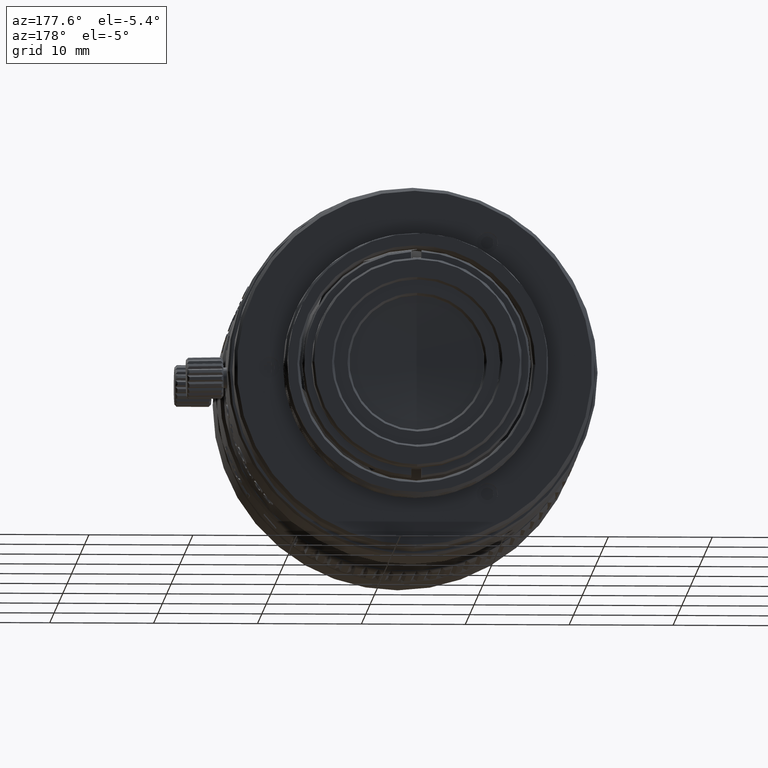
[diagram: clean part render]
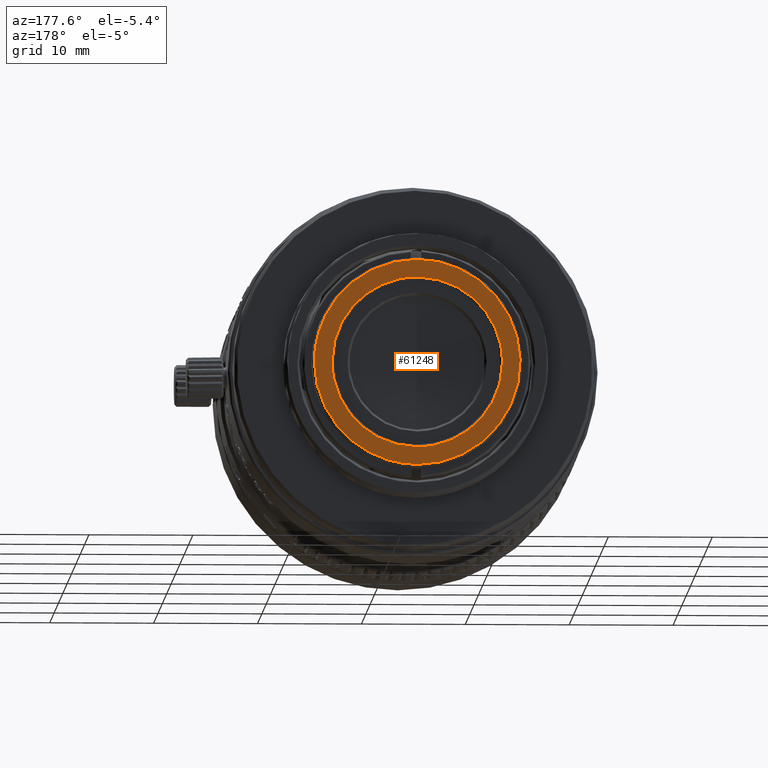
[diagram: same view with one face highlighted and labeled with its STEP entity id]
A machine part, auxiliary view. The second image highlights one B-rep face of the part: STEP entity #61248.
In plain terms, the highlighted planar face has unit normal (0, 1, 0).
Its self-contained STEP definition (entity closure, byte-faithful):
#209 = CARTESIAN_POINT ( 'NONE',  ( 27.18030778662196667, 28.59968554691999998, -15.42314390052662354 ) ) ;
#229 = CARTESIAN_POINT ( 'NONE',  ( 27.40002597598438783, 28.59968554692000353, -17.80260141851667655 ) ) ;
#917 = CARTESIAN_POINT ( 'NONE',  ( 27.17635887773482395, 28.59968554692000708, -19.61698584081840835 ) ) ;
#1149 = CARTESIAN_POINT ( 'NONE',  ( 9.649666010205725897, 28.59968554692001064, -15.10483594180748312 ) ) ;
#1176 = CARTESIAN_POINT ( 'NONE',  ( 8.399199874386575004, 28.59968554692001419, -21.39702094661192433 ) ) ;
#1487 = CARTESIAN_POINT ( 'NONE',  ( 18.49928375348486043, 28.59968554692000353, -9.345670634804477572 ) ) ;
#1528 = CARTESIAN_POINT ( 'NONE',  ( 7.624723250887947223, 28.59968554691999998, -16.67382616403197559 ) ) ;
#1737 = CARTESIAN_POINT ( 'NONE',  ( 11.30172359176268237, 28.59968554691999998, -22.89822977665026471 ) ) ;
#1806 = CARTESIAN_POINT ( 'NONE',  ( 24.72371025431205638, 28.59968554692000353, -21.39793023584838494 ) ) ;
#1846 = CARTESIAN_POINT ( 'NONE',  ( 10.67453244584020489, 28.59968554692000353, -12.95494419490485605 ) ) ;
#1855 = ORIENTED_EDGE ( 'NONE', *, *, #51608, .T. ) ;
#1873 = CARTESIAN_POINT ( 'NONE',  ( 7.600048478253858875, 28.59968554692000708, -18.16284718442712887 ) ) ;
#2094 = CARTESIAN_POINT ( 'NONE',  ( 14.45074639327373234, 28.59968554692000353, -25.11205080783446775 ) ) ;
#2172 = CARTESIAN_POINT ( 'NONE',  ( 22.89823011721267676, 28.59968554692000353, -23.69830015387581312 ) ) ;
#2238 = CARTESIAN_POINT ( 'NONE',  ( 17.50001205303010110, 28.59968554578942701, -27.40000944473340994 ) ) ;
#2555 = CARTESIAN_POINT ( 'NONE',  ( 25.58504628580149642, 28.59968554691999998, -16.13133126494456704 ) ) ;
#2573 = CARTESIAN_POINT ( 'NONE',  ( 13.42460351095648186, 28.59968554692000353, -10.38203663534682519 ) ) ;
#2596 = CARTESIAN_POINT ( 'NONE',  ( 16.70898558712738691, 28.59968554692000353, -27.37733077204183374 ) ) ;
#2614 = ORIENTED_EDGE ( 'NONE', *, *, #45065, .T. ) ;
#2894 = CARTESIAN_POINT ( 'NONE',  ( 25.56916426848147594, 28.59968554692000353, -16.04057966339574293 ) ) ;
#2938 = CARTESIAN_POINT ( 'NONE',  ( 13.58447838704839405, 28.59968554692001064, -8.406855119529296871 ) ) ;
#3097 = CARTESIAN_POINT ( 'NONE',  ( 17.80268938665076917, 28.59968554692000708, -7.600013968566256217 ) ) ;
#3355 = B_SPLINE_CURVE_WITH_KNOTS ( 'NONE', 3,
 ( #12181, #23947, #29291, #24302, #28940, #50692, #67454, #12903, #13256, #56391, #34996, #49990, #45707, #44632, #61023, #18614, #29652, #2573, #44984, #6838, #46058, #6482, #55331, #28584, #67798, #12539, #33947, #33591, #1846, #22879, #55684, #28225, #18956, #50344, #23223, #34299, #40352, #1149, #40699, #67097, #62106, #17888, #66390, #66734, #17547, #39637 ),
 .UNSPECIFIED., .F., .F.,
 ( 4, 1, 1, 1, 2, 2, 1, 1, 1, 2, 2, 1, 1, 2, 2, 2, 1, 1, 2, 2, 1, 1, 1, 2, 2, 1, 1, 1, 2, 2, 4 ),
 ( 0.5000000000000000000, 0.5312500000000039968, 0.5468750000000057732, 0.5546875000000068834, 0.5585937500000073275, 0.5625000000000076605, 0.5937500000000077716, 0.6093750000000076605, 0.6171875000000076605, 0.6210937500000076605, 0.6250000000000075495, 0.6562500000000067724, 0.6718750000000064393, 0.6796875000000062172, 0.6875000000000061062, 0.7500000000000059952, 0.7812500000000057732, 0.7968750000000057732, 0.8046875000000058842, 0.8125000000000059952, 0.8437500000000065503, 0.8593750000000068834, 0.8671875000000069944, 0.8710937500000071054, 0.8750000000000073275, 0.9062500000000077716, 0.9218750000000079936, 0.9296875000000082157, 0.9335937500000079936, 0.9375000000000079936, 1.000000000000000000 ),
 .UNSPECIFIED. ) ;
#3631 = CARTESIAN_POINT ( 'NONE',  ( 9.210591094924604150, 28.59968554691999998, -12.08689580753973658 ) ) ;
#3806 = CARTESIAN_POINT ( 'NONE',  ( 20.99447280442791453, 28.59968554692000708, -8.237162632255559558 ) ) ;
#4280 = CARTESIAN_POINT ( 'NONE',  ( 9.399470042277597415, 28.59968554692000353, -18.77604672661482610 ) ) ;
#4338 = CARTESIAN_POINT ( 'NONE',  ( 8.691814897291749276, 28.59968554692000353, -12.96130520392694940 ) ) ;
#4505 = CARTESIAN_POINT ( 'NONE',  ( 26.67387388424299033, 28.59968554691999643, -13.77819292309899524 ) ) ;
#4717 = VERTEX_POINT ( 'NONE', #36963 ) ;
#4855 = CARTESIAN_POINT ( 'NONE',  ( 24.01732007360603660, 28.59968554691999998, -10.01666122683010052 ) ) ;
#5219 = CARTESIAN_POINT ( 'NONE',  ( 22.20597472055147037, 28.59968554692000353, -26.22132722601254429 ) ) ;
#5322 = CARTESIAN_POINT ( 'NONE',  ( 9.300006490191902842, 28.59968554692000708, -17.75069910400157980 ) ) ;
#5564 = CARTESIAN_POINT ( 'NONE',  ( 19.57687985090906224, 28.59968554691999998, -27.18030746260915009 ) ) ;
#5764 = CARTESIAN_POINT ( 'NONE',  ( 17.50001204309999636, 28.59968554692000353, -25.70001725542809723 ) ) ;
#5917 = CARTESIAN_POINT ( 'NONE',  ( 18.70620021764175789, 28.59968554692001064, -27.34491717234124053 ) ) ;
#6029 = CARTESIAN_POINT ( 'NONE',  ( 14.03617036243037930, 28.59968554692000353, -24.93481745518316117 ) ) ;
#6482 = CARTESIAN_POINT ( 'NONE',  ( 12.53935113365301746, 28.59968554692001064, -10.94618888893075948 ) ) ;
#6605 = CARTESIAN_POINT ( 'NONE',  ( 23.87987446971467165, 28.59968554692001064, -25.08377104907367894 ) ) ;
#6838 = CARTESIAN_POINT ( 'NONE',  ( 13.12933107325032545, 28.59968554691999998, -10.56156482245061845 ) ) ;
#6866 = CARTESIAN_POINT ( 'NONE',  ( 7.814413490038713661, 28.59968554692001774, -19.55084498151394357 ) ) ;
#7075 = CARTESIAN_POINT ( 'NONE',  ( 12.89494397136174619, 28.59968554692000708, -24.28517656352834919 ) ) ;
#7150 = CARTESIAN_POINT ( 'NONE',  ( 25.22212228625626196, 28.59968554692001064, -20.27129446552592640 ) ) ;
#7217 = CARTESIAN_POINT ( 'NONE',  ( 7.781771748730093030, 28.59968554691999287, -15.60996558184653971 ) ) ;
#7500 = CARTESIAN_POINT ( 'NONE',  ( 20.08234464923501505, 28.59968554691999998, -25.28482349791200434 ) ) ;
#7540 = EDGE_LOOP ( 'NONE', ( #12998, #10106, #27837 ) ) ;
#7567 = CARTESIAN_POINT ( 'NONE',  ( 8.262033547171499848, 28.59968554692000353, -13.93889446072762084 ) ) ;
#7859 = CARTESIAN_POINT ( 'NONE',  ( 21.92794282282732965, 28.59968554691999643, -24.40207267054343987 ) ) ;
#7880 = CARTESIAN_POINT ( 'NONE',  ( 19.12265769808217897, 28.59968554691999998, -9.462086638808184347 ) ) ;
#7924 = CARTESIAN_POINT ( 'NONE',  ( 12.26556106752458497, 28.59968554692000708, -25.90468084249959446 ) ) ;
#8237 = CARTESIAN_POINT ( 'NONE',  ( 24.05383485669080912, 28.59968554692000708, -12.53935079307732892 ) ) ;
#8280 = CARTESIAN_POINT ( 'NONE',  ( 8.430403474013322906, 28.59968554692000708, -21.46911054099360783 ) ) ;
#8438 = CARTESIAN_POINT ( 'NONE',  ( 20.61774921111687675, 28.59968554691999998, -8.101297235932877427 ) ) ;
#8448 = VERTEX_POINT ( 'NONE', #5764 ) ;
#8582 = CARTESIAN_POINT ( 'NONE',  ( 19.22026964297325691, 28.59968554692000708, -9.481988077655236324 ) ) ;
#8622 = CARTESIAN_POINT ( 'NONE',  ( 9.085063196209690162, 28.59968554691999998, -12.28415511615608757 ) ) ;
#8973 = CARTESIAN_POINT ( 'NONE',  ( 10.35534247962108978, 28.59968554691999998, -10.64653526480570811 ) ) ;
#9147 = CARTESIAN_POINT ( 'NONE',  ( 18.25487661980483978, 28.59968554692000353, -7.620673570901399074 ) ) ;
#9182 = CARTESIAN_POINT ( 'NONE',  ( 20.77588183930839350, 28.59968554691999643, -25.02236129636288098 ) ) ;
#9539 = CARTESIAN_POINT ( 'NONE',  ( 24.93481779577597379, 28.59968554692000353, -20.96385338316462565 ) ) ;
#9978 = CARTESIAN_POINT ( 'NONE',  ( 9.792759238627040119, 28.59968554692001064, -20.30112726389317857 ) ) ;
#10034 = CARTESIAN_POINT ( 'NONE',  ( 10.08220875352804846, 28.59968554692000353, -10.94009963462380775 ) ) ;
#10106 = ORIENTED_EDGE ( 'NONE', *, *, #50348, .T. ) ;
#10546 = CARTESIAN_POINT ( 'NONE',  ( 26.59382216006867594, 28.59968554692001064, -13.58527405132051236 ) ) ;
#10566 = CARTESIAN_POINT ( 'NONE',  ( 27.31911426833804768, 28.59968554691999998, -18.77911267345442781 ) ) ;
#10918 = CARTESIAN_POINT ( 'NONE',  ( 25.41250016097400888, 28.59968554692001064, -23.48915467531434587 ) ) ;
#11249 = CARTESIAN_POINT ( 'NONE',  ( 22.84591639595144841, 28.59968554692000353, -9.167037348103649563 ) ) ;
#11268 = CARTESIAN_POINT ( 'NONE',  ( 27.24829474210686442, 28.59968554692000353, -19.22695508231470285 ) ) ;
#11270 = CARTESIAN_POINT ( 'NONE',  ( 7.203999460212000550, 28.59968554692000353, -27.79601170252000131 ) ) ;
#11596 = CARTESIAN_POINT ( 'NONE',  ( 25.59490557636792474, 28.59968554691999643, -11.79996325039917515 ) ) ;
#11619 = CARTESIAN_POINT ( 'NONE',  ( 21.41474969908429671, 28.59968554692000708, -26.59382183070222894 ) ) ;
#11959 = CARTESIAN_POINT ( 'NONE',  ( 25.87690199738507246, 28.59968554692001064, -22.77681984622675060 ) ) ;
#12181 = CARTESIAN_POINT ( 'NONE',  ( 17.50001204309999636, 28.59968554692000353, -9.300006149611906636 ) ) ;
#12207 = CARTESIAN_POINT ( 'NONE',  ( 7.924476516454637576, 28.59968554692001064, -20.02318915797945209 ) ) ;
#12424 = CARTESIAN_POINT ( 'NONE',  ( 11.90173697042567191, 28.59968554692000708, -23.49832196379786353 ) ) ;
#12522 = CARTESIAN_POINT ( 'NONE',  ( 17.50001204309999636, 28.59968554692000353, -9.300006149611906636 ) ) ;
#12539 = CARTESIAN_POINT ( 'NONE',  ( 10.91774269509911299, 28.59968554692000353, -12.60615840101998941 ) ) ;
#12564 = CARTESIAN_POINT ( 'NONE',  ( 16.15994987837420283, 28.59968554692000708, -27.31118463126126628 ) ) ;
#12863 = CARTESIAN_POINT ( 'NONE',  ( 25.55741752133326017, 28.59968554692001064, -19.02292234793442915 ) ) ;
#12883 = CARTESIAN_POINT ( 'NONE',  ( 25.51477957103043792, 28.59968554692001064, -15.74658565368087437 ) ) ;
#12903 = CARTESIAN_POINT ( 'NONE',  ( 16.04058000397426653, 28.59968554692001064, -9.430859477138906044 ) ) ;
#12998 = ORIENTED_EDGE ( 'NONE', *, *, #68453, .T. ) ;
#13218 = CARTESIAN_POINT ( 'NONE',  ( 18.55943059298662234, 28.59968554691999998, -25.63301649308726837 ) ) ;
#13238 = CARTESIAN_POINT ( 'NONE',  ( 19.44683578294790749, 28.59968554692000708, -9.532477271161271304 ) ) ;
#13256 = CARTESIAN_POINT ( 'NONE',  ( 15.74658599427264072, 28.59968554692001064, -9.485244174586513921 ) ) ;
#13281 = CARTESIAN_POINT ( 'NONE',  ( 15.65359516896689485, 28.59968554692000353, -27.22638481764927931 ) ) ;
#13442 = VERTEX_POINT ( 'NONE', #44281 ) ;
#13597 = CARTESIAN_POINT ( 'NONE',  ( 25.70001759600810232, 28.59968554692001064, -17.24932430103258341 ) ) ;
#13641 = CARTESIAN_POINT ( 'NONE',  ( 8.592767063682329010, 28.59968554692001064, -21.82611170613180107 ) ) ;
#13957 = CARTESIAN_POINT ( 'NONE',  ( 20.96385372376704481, 28.59968554692000353, -10.06520594985614103 ) ) ;
#14698 = CARTESIAN_POINT ( 'NONE',  ( 15.57444881227284661, 28.59968554692000708, -7.789002940253272556 ) ) ;
#14907 = CARTESIAN_POINT ( 'NONE',  ( 19.25343809192288802, 28.59968554692000353, -25.51477923045467477 ) ) ;
#15927 = CARTESIAN_POINT ( 'NONE',  ( 25.69186098266591500, 28.59968554692000353, -11.94025297876385139 ) ) ;
#15950 = CARTESIAN_POINT ( 'NONE',  ( 23.20006049822481842, 28.59968554692000708, -25.59490524181209992 ) ) ;
#16055 = CARTESIAN_POINT ( 'NONE',  ( 9.430859817718937776, 28.59968554692001064, -18.95944374164574597 ) ) ;
#16293 = CARTESIAN_POINT ( 'NONE',  ( 21.22183082744430394, 28.59968554692000708, -26.67387355543974792 ) ) ;
#16356 = VERTEX_POINT ( 'NONE', #24867 ) ;
#16617 = CARTESIAN_POINT ( 'NONE',  ( 20.39168501391756294, 28.59968554692000353, -26.97787753822019852 ) ) ;
#17083 = CARTESIAN_POINT ( 'NONE',  ( 10.48882024091052756, 28.59968554692000353, -21.75305996259245234 ) ) ;
#17329 = CARTESIAN_POINT ( 'NONE',  ( 27.24202971204032764, 28.59968554692000708, -19.26200295822776809 ) ) ;
#17547 = CARTESIAN_POINT ( 'NONE',  ( 9.300006490191902842, 28.59968554692000353, -16.99828135907219462 ) ) ;
#17575 = CARTESIAN_POINT ( 'NONE',  ( 9.298538193764466442, 28.59968554692000353, -23.04544853512393843 ) ) ;
#17855 = CARTESIAN_POINT ( 'NONE',  ( 20.30112760446976594, 28.59968554691999998, -25.20726450699364563 ) ) ;
#17888 = CARTESIAN_POINT ( 'NONE',  ( 9.449205306143856120, 28.59968554692000353, -15.94255449315770257 ) ) ;
#18134 = CARTESIAN_POINT ( 'NONE',  ( 13.60209350973828357, 28.59968554691999643, -24.72370991371497340 ) ) ;
#18214 = CARTESIAN_POINT ( 'NONE',  ( 25.53793710681383544, 28.59968554692000708, -19.12265735749432949 ) ) ;
#18275 = CARTESIAN_POINT ( 'NONE',  ( 7.982334924697128464, 28.59968554692001064, -14.74137761883311271 ) ) ;
#18575 = CARTESIAN_POINT ( 'NONE',  ( 25.70001759600809876, 28.59968554691999998, -18.00174204595085570 ) ) ;
#18614 = CARTESIAN_POINT ( 'NONE',  ( 14.22414224689561202, 28.59968554692000708, -9.977662108676135233 ) ) ;
#18915 = CARTESIAN_POINT ( 'NONE',  ( 18.12507392173021969, 28.59968554691999643, -25.68293361014224274 ) ) ;
#18939 = CARTESIAN_POINT ( 'NONE',  ( 24.43845892316694801, 28.59968554692001064, -13.12933073266617967 ) ) ;
#18956 = CARTESIAN_POINT ( 'NONE',  ( 9.967769043098353876, 28.59968554692000708, -14.25747826028830012 ) ) ;
#18981 = CARTESIAN_POINT ( 'NONE',  ( 10.58467319801623141, 28.59968554692001064, -24.58484728166208200 ) ) ;
#19151 = CARTESIAN_POINT ( 'NONE',  ( 19.28172457580010501, 28.59968554691999998, -7.761642405109074438 ) ) ;
#19294 = CARTESIAN_POINT ( 'NONE',  ( 22.04507955071510494, 28.59968554692000353, -10.67453210526007901 ) ) ;
#19679 = CARTESIAN_POINT ( 'NONE',  ( 10.24517868683062716, 28.59968554691999998, -10.76322760695928160 ) ) ;
#20024 = CARTESIAN_POINT ( 'NONE',  ( 17.50001204310156666, 28.59968554692000353, -7.600013965959458773 ) ) ;
#20193 = CARTESIAN_POINT ( 'NONE',  ( 19.22697188700241355, 28.59968554692000708, -7.751786722095590498 ) ) ;
#20233 = CARTESIAN_POINT ( 'NONE',  ( 20.48620431377783291, 28.59968554692001064, -25.13702088899817255 ) ) ;
#20381 = CARTESIAN_POINT ( 'NONE',  ( 9.432899606294743222, 28.59968554691999998, -11.75238294869146571 ) ) ;
#20677 = CARTESIAN_POINT ( 'NONE',  ( 9.485244515166229462, 28.59968554692001419, -19.25343775134734514 ) ) ;
#20903 = CARTESIAN_POINT ( 'NONE',  ( 26.64213332863389638, 28.59968554692000708, -13.70087839184436440 ) ) ;
#21241 = CARTESIAN_POINT ( 'NONE',  ( 27.22736578566802734, 28.59968554692000353, -15.65911042071973647 ) ) ;
#21944 = CARTESIAN_POINT ( 'NONE',  ( 27.23129069772140554, 28.59968554691999643, -15.67998194543016766 ) ) ;
#21962 = CARTESIAN_POINT ( 'NONE',  ( 26.89872650390026010, 28.59968554691999998, -20.61774886577719101 ) ) ;
#22301 = CARTESIAN_POINT ( 'NONE',  ( 17.50001205303010110, 28.59968554578942701, -27.40000944473340994 ) ) ;
#22767 = CARTESIAN_POINT ( 'NONE',  ( 9.851452013955553255, 28.59968554692000353, -20.45647803472216353 ) ) ;
#22879 = CARTESIAN_POINT ( 'NONE',  ( 10.48509123337869475, 28.59968554692000708, -13.24466665116239739 ) ) ;
#22903 = CARTESIAN_POINT ( 'NONE',  ( 13.89138351596065490, 28.59968554692000353, -26.72037881907386137 ) ) ;
#23191 = CARTESIAN_POINT ( 'NONE',  ( 25.07227460837939859, 28.59968554692000708, -20.64678379710960243 ) ) ;
#23207 = CARTESIAN_POINT ( 'NONE',  ( 18.00121161294651273, 28.59968554691999287, -9.300038565238985200 ) ) ;
#23223 = CARTESIAN_POINT ( 'NONE',  ( 9.901456268756247070, 28.59968554692000353, -14.41728383073065167 ) ) ;
#23253 = CARTESIAN_POINT ( 'NONE',  ( 7.696885740804074061, 28.59968554692000353, -16.10072495592780939 ) ) ;
#23470 = CARTESIAN_POINT ( 'NONE',  ( 12.21563487957454264, 28.59968554692000708, -23.78148104902517801 ) ) ;
#23542 = CARTESIAN_POINT ( 'NONE',  ( 25.46754647446447350, 28.59968554692000353, -19.44683544234556294 ) ) ;
#23560 = CARTESIAN_POINT ( 'NONE',  ( 19.05746925246229750, 28.59968554691999998, -9.449204965563760439 ) ) ;
#23832 = CARTESIAN_POINT ( 'NONE',  ( 16.99881247326599620, 28.59968554692000353, -25.69998483979937376 ) ) ;
#23914 = CARTESIAN_POINT ( 'NONE',  ( 22.46067295255405938, 28.59968554692001064, -24.05383451610124723 ) ) ;
#23947 = CARTESIAN_POINT ( 'NONE',  ( 17.24941225817673995, 28.59968554692001064, -9.299989941798369131 ) ) ;
#23970 = CARTESIAN_POINT ( 'NONE',  ( 9.920379696625033716, 28.59968554692000708, -23.88290735071803894 ) ) ;
#24285 = CARTESIAN_POINT ( 'NONE',  ( 22.39386534460352252, 28.59968554692000353, -10.91774235452082920 ) ) ;
#24302 = CARTESIAN_POINT ( 'NONE',  ( 16.44059349320516361, 28.59968554692001064, -9.367006911953806636 ) ) ;
#24327 = CARTESIAN_POINT ( 'NONE',  ( 15.88635626461270789, 28.59968554692001064, -27.26818963964948139 ) ) ;
#24487 = CARTESIAN_POINT ( 'NONE',  ( 19.17109141408923634, 28.59968554692000353, -7.741941130540022087 ) ) ;
#24625 = CARTESIAN_POINT ( 'NONE',  ( 25.42366807487814739, 28.59968554691999998, -15.35980456942931660 ) ) ;
#24670 = CARTESIAN_POINT ( 'NONE',  ( 10.94275162633141107, 28.59968554692000353, -10.07554047305689338 ) ) ;
#24867 = CARTESIAN_POINT ( 'NONE',  ( 17.50001204310156666, 28.59968554692000353, -7.600013965959458773 ) ) ;
#25015 = CARTESIAN_POINT ( 'NONE',  ( 11.44929919562974696, 28.59968554692001419, -9.657245777586213720 ) ) ;
#25367 = CARTESIAN_POINT ( 'NONE',  ( 10.40972657734264040, 28.59968554692000708, -10.59027015211329470 ) ) ;
#25713 = CARTESIAN_POINT ( 'NONE',  ( 9.717875867003831658, 28.59968554692000708, -11.36563563354703987 ) ) ;
#26018 = CARTESIAN_POINT ( 'NONE',  ( 9.414977800398492747, 28.59968554692000708, -18.86869214009274032 ) ) ;
#26076 = CARTESIAN_POINT ( 'NONE',  ( 14.04089803036585948, 28.59968554692001419, -8.218189260184182388 ) ) ;
#26243 = CARTESIAN_POINT ( 'NONE',  ( 27.40000977174653940, 28.59968554126714224, -17.50001169941745260 ) ) ;
#26593 = CARTESIAN_POINT ( 'NONE',  ( 26.22132755768527090, 28.59968554692000353, -12.79404902920029485 ) ) ;
#26715 = CARTESIAN_POINT ( 'NONE',  ( 9.300006490191901065, 28.59968554692000353, -17.50001170252000193 ) ) ;
#26954 = CARTESIAN_POINT ( 'NONE',  ( 25.96472183972735692, 28.59968554691999998, -22.63481213839639494 ) ) ;
#27651 = CARTESIAN_POINT ( 'NONE',  ( 26.72029734824158709, 28.59968554691999643, -21.10528529107517670 ) ) ;
#27837 = ORIENTED_EDGE ( 'NONE', *, *, #43860, .T. ) ;
#28225 = CARTESIAN_POINT ( 'NONE',  ( 10.06520629043545512, 28.59968554692000353, -14.03617002185311691 ) ) ;
#28584 = CARTESIAN_POINT ( 'NONE',  ( 11.50170178181950043, 28.59968554692000708, -11.90173662984922842 ) ) ;
#28611 = CARTESIAN_POINT ( 'NONE',  ( 7.599997207115393394, 28.59968554692001419, -17.16859397087591077 ) ) ;
#28647 = B_SPLINE_CURVE_WITH_KNOTS ( 'NONE', 3,
 ( #26715, #5322, #43130, #64881, #4280, #26018, #69519, #16055, #20677, #42440, #58820, #9978, #32428, #22767, #66277, #55923, #33134, #65913, #17083, #44156, #50946, #50581, #1737, #12424, #23470, #45224, #39173, #7075, #49525, #66980, #18134, #6029, #44519, #33486, #39885, #2094, #55566, #56279, #34189, #28833, #60918, #38819, #49873, #60575, #23832, #61628 ),
 .UNSPECIFIED., .F., .F.,
 ( 4, 1, 1, 1, 2, 2, 1, 1, 1, 2, 2, 1, 1, 2, 2, 2, 1, 1, 2, 2, 1, 1, 1, 2, 2, 1, 1, 1, 2, 2, 4 ),
 ( 0.000000000000000000, 0.03124999999999971551, 0.04687499999999935468, 0.05468749999999916733, 0.05859374999999888284, 0.06249999999999859834, 0.09374999999999705791, 0.1093749999999965028, 0.1171874999999964195, 0.1210937499999963918, 0.1249999999999963501, 0.1562499999999956146, 0.1718749999999954481, 0.1796874999999955869, 0.1874999999999957534, 0.2499999999999961142, 0.2812499999999965028, 0.2968749999999966693, 0.3046874999999967804, 0.3124999999999968914, 0.3437499999999969469, 0.3593749999999969469, 0.3671874999999968914, 0.3710937499999968914, 0.3749999999999968914, 0.4062499999999971134, 0.4218749999999972244, 0.4296874999999973910, 0.4335937499999976130, 0.4374999999999978351, 0.5000000000000000000 ),
 .UNSPECIFIED. ) ;
#28833 = CARTESIAN_POINT ( 'NONE',  ( 15.77975444322829368, 28.59968554691999998, -25.51803532738518854 ) ) ;
#28907 = CARTESIAN_POINT ( 'NONE',  ( 18.95944408222629463, 28.59968554692000353, -25.56916392790095216 ) ) ;
#28924 = CARTESIAN_POINT ( 'NONE',  ( 25.02236163693867965, 28.59968554692001064, -14.22414190630675712 ) ) ;
#28940 = CARTESIAN_POINT ( 'NONE',  ( 16.22404410043263212, 28.59968554691999998, -9.399457292590355451 ) ) ;
#28964 = CARTESIAN_POINT ( 'NONE',  ( 15.29164794961634755, 28.59968554691999998, -27.15614176381593481 ) ) ;
#29271 = CARTESIAN_POINT ( 'NONE',  ( 25.14857207224363833, 28.59968554691999998, -14.54354537031497330 ) ) ;
#29291 = CARTESIAN_POINT ( 'NONE',  ( 16.87495016445883067, 28.59968554692000353, -9.317089794899192867 ) ) ;
#29314 = CARTESIAN_POINT ( 'NONE',  ( 8.306994470041145107, 28.59968554691999998, -13.82576359138660393 ) ) ;
#29652 = CARTESIAN_POINT ( 'NONE',  ( 13.84743085229988679, 28.59968554691999998, -10.14921451109752759 ) ) ;
#29677 = CARTESIAN_POINT ( 'NONE',  ( 10.88372311250785707, 28.59968554692000353, -24.86774940081539853 ) ) ;
#29996 = CARTESIAN_POINT ( 'NONE',  ( 23.69830049443910269, 28.59968554692000353, -12.10179362839242501 ) ) ;
#30035 = CARTESIAN_POINT ( 'NONE',  ( 9.344837191338617899, 28.59968554692000353, -23.11334917920079945 ) ) ;
#30197 = CARTESIAN_POINT ( 'NONE',  ( 20.88187030464649752, 28.59968554692000708, -8.194929942160701586 ) ) ;
#30334 = CARTESIAN_POINT ( 'NONE',  ( 19.02291172891736792, 28.59968554692000353, -9.442604195455702509 ) ) ;
#30585 = AXIS2_PLACEMENT_3D ( 'NONE', #11270, #65457, #33030 ) ;
#30732 = CARTESIAN_POINT ( 'NONE',  ( 8.353438985674580763, 28.59968554692001064, -13.71165358145229085 ) ) ;
#30905 = CARTESIAN_POINT ( 'NONE',  ( 18.77922802302317606, 28.59968554692000708, -7.680930743471540367 ) ) ;
#31264 = CARTESIAN_POINT ( 'NONE',  ( 21.45505436804944566, 28.59968554692000353, -8.418175543825178408 ) ) ;
#31301 = CARTESIAN_POINT ( 'NONE',  ( 25.03225504310832150, 28.59968554692000708, -20.74254514473872035 ) ) ;
#31442 = CARTESIAN_POINT ( 'NONE',  ( 14.50270488575747230, 28.59968554691999998, -8.054603681996749032 ) ) ;
#31953 = CARTESIAN_POINT ( 'NONE',  ( 25.44692177408785483, 28.59968554692000353, -11.59162233553791310 ) ) ;
#32323 = CARTESIAN_POINT ( 'NONE',  ( 26.80509379813800308, 28.59968554692000353, -20.88186995958397674 ) ) ;
#32428 = CARTESIAN_POINT ( 'NONE',  ( 9.827742421746398449, 28.59968554692000353, -20.39440286299922889 ) ) ;
#32650 = B_SPLINE_CURVE_WITH_KNOTS ( 'NONE', 3,
 ( #55113, #229, #38712, #10566, #49763, #65803, #11268, #17329, #917, #33378, #21962, #32323, #64769, #50121, #27651, #44411, #39062, #48711, #26954, #11959, #33715, #10918, #70441, #55459, #6605, #43363, #15950, #54069, #43710, #60462, #5219, #65114, #11619, #33028, #16293, #38012, #59762, #16617, #54413, #5564, #49066, #38354, #60106, #54763, #5917, #49417, #22301 ),
 .UNSPECIFIED., .F., .F.,
 ( 4, 1, 1, 1, 2, 2, 1, 1, 1, 2, 2, 1, 1, 2, 2, 2, 1, 1, 2, 2, 1, 1, 1, 2, 2, 1, 1, 1, 1, 2, 2, 4 ),
 ( 0.5000000000000000000, 0.5312500000000012212, 0.5468750000000016653, 0.5546875000000017764, 0.5585937500000017764, 0.5625000000000017764, 0.5937500000000013323, 0.6093750000000013323, 0.6171875000000011102, 0.6210937500000008882, 0.6250000000000005551, 0.6562500000000002220, 0.6718750000000002220, 0.6796875000000001110, 0.6875000000000000000, 0.7500000000000004441, 0.7812500000000007772, 0.7968750000000008882, 0.8046875000000009992, 0.8125000000000011102, 0.8437500000000011102, 0.8593750000000008882, 0.8671875000000008882, 0.8710937500000008882, 0.8750000000000009992, 0.9062500000000008882, 0.9218750000000008882, 0.9296875000000012212, 0.9335937500000011102, 0.9355468750000013323, 0.9375000000000013323, 1.000000000000000000 ),
 .UNSPECIFIED. ) ;
#32676 = FACE_OUTER_BOUND ( 'NONE', #7540, .T. ) ;
#33028 = CARTESIAN_POINT ( 'NONE',  ( 21.29914535864409686, 28.59968554691999998, -26.64213299960490744 ) ) ;
#33030 = DIRECTION ( 'NONE',  ( 0.000000000000000000, -0.000000000000000000, 1.000000000000000000 ) ) ;
#33134 = CARTESIAN_POINT ( 'NONE',  ( 10.14921485167798387, 28.59968554691999998, -21.15259289332001913 ) ) ;
#33357 = CARTESIAN_POINT ( 'NONE',  ( 26.97787786460314408, 28.59968554691999643, -14.60833873715745490 ) ) ;
#33378 = CARTESIAN_POINT ( 'NONE',  ( 27.06635096610569846, 28.59968554691999998, -20.08397896873422539 ) ) ;
#33486 = CARTESIAN_POINT ( 'NONE',  ( 14.35323994850161888, 28.59968554692000708, -25.07227426779489932 ) ) ;
#33591 = CARTESIAN_POINT ( 'NONE',  ( 10.71484718209041098, 28.59968554692001419, -12.89494363078342154 ) ) ;
#33715 = CARTESIAN_POINT ( 'NONE',  ( 25.83298639566633170, 28.59968554692001064, -22.84591605372493106 ) ) ;
#33947 = CARTESIAN_POINT ( 'NONE',  ( 10.79516103687646833, 28.59968554692000708, -12.77873497788731250 ) ) ;
#33973 = CARTESIAN_POINT ( 'NONE',  ( 7.867390340600983301, 28.59968554691999998, -19.78685100023728083 ) ) ;
#34189 = CARTESIAN_POINT ( 'NONE',  ( 15.55318830325472845, 28.59968554692000353, -25.46754613387947330 ) ) ;
#34263 = CARTESIAN_POINT ( 'NONE',  ( 18.86865209491250184, 28.59968554692000353, -25.58505341601094329 ) ) ;
#34299 = CARTESIAN_POINT ( 'NONE',  ( 9.887972937785402650, 28.59968554692000353, -14.45074605269397772 ) ) ;
#34325 = CARTESIAN_POINT ( 'NONE',  ( 7.831232819448754157, 28.59968554692000353, -19.62869630827951184 ) ) ;
#34635 = CARTESIAN_POINT ( 'NONE',  ( 21.39793057645828611, 28.59968554692000708, -10.27631349132408900 ) ) ;
#34676 = CARTESIAN_POINT ( 'NONE',  ( 11.31785622006322711, 28.59968554692000353, -25.24488878087554866 ) ) ;
#34961 = CARTESIAN_POINT ( 'NONE',  ( 25.70001759600809521, 28.59968554692000353, -17.50001170252000193 ) ) ;
#34978 = CARTESIAN_POINT ( 'NONE',  ( 22.78438920662389222, 28.59968554692000353, -11.21854235601247041 ) ) ;
#34996 = CARTESIAN_POINT ( 'NONE',  ( 14.91767943695911036, 28.59968554692000708, -9.715199907129553836 ) ) ;
#35022 = CARTESIAN_POINT ( 'NONE',  ( 12.98128092401423395, 28.59968554692000708, -26.31964072455593140 ) ) ;
#35335 = CARTESIAN_POINT ( 'NONE',  ( 25.17228166445205773, 28.59968554692000708, -14.60562054203532867 ) ) ;
#35374 = CARTESIAN_POINT ( 'NONE',  ( 8.477822962956858888, 28.59968554692000708, -21.57691137062061415 ) ) ;
#35681 = CARTESIAN_POINT ( 'NONE',  ( 19.89518780381261109, 28.59968554691999643, -9.649665669624983622 ) ) ;
#35720 = CARTESIAN_POINT ( 'NONE',  ( 13.43268175950726473, 28.59968554691999998, -8.473705004742166480 ) ) ;
#35929 = EDGE_CURVE ( 'NONE', #51376, #64486, #63840, .T. ) ;
#36261 = CARTESIAN_POINT ( 'NONE',  ( 17.50001204309999636, 28.59968554692000353, -25.70001725542809723 ) ) ;
#36588 = CARTESIAN_POINT ( 'NONE',  ( 19.61698618696388863, 28.59968554691999643, -7.823664860327136594 ) ) ;
#36625 = CARTESIAN_POINT ( 'NONE',  ( 24.51493285283002166, 28.59968554692000708, -21.75535675386064582 ) ) ;
#36963 = CARTESIAN_POINT ( 'NONE',  ( 17.50001205303010110, 28.59968554578942701, -27.40000944473340994 ) ) ;
#37294 = CARTESIAN_POINT ( 'NONE',  ( 24.74189131004697373, 28.59968554692000353, -10.74115364661618344 ) ) ;
#37640 = CARTESIAN_POINT ( 'NONE',  ( 25.74051843749034774, 28.59968554691999643, -12.01267098072158213 ) ) ;
#38012 = CARTESIAN_POINT ( 'NONE',  ( 21.18144355084132258, 28.59968554691999998, -26.69014689000191609 ) ) ;
#38354 = CARTESIAN_POINT ( 'NONE',  ( 19.38032947729985267, 28.59968554691999998, -27.21982350091467850 ) ) ;
#38712 = CARTESIAN_POINT ( 'NONE',  ( 27.37937853172483216, 28.59968554692000353, -18.25472293572194005 ) ) ;
#38819 = CARTESIAN_POINT ( 'NONE',  ( 15.94255483373818372, 28.59968554691999998, -25.55081843947637310 ) ) ;
#39062 = CARTESIAN_POINT ( 'NONE',  ( 26.37471771286531563, 28.59968554691999998, -21.90988799467411141 ) ) ;
#39173 = CARTESIAN_POINT ( 'NONE',  ( 12.77873531846430666, 28.59968554691999998, -24.20486270874129531 ) ) ;
#39304 = CARTESIAN_POINT ( 'NONE',  ( 13.43050963315121749, 28.59968554692001419, -26.53105679044554677 ) ) ;
#39524 = EDGE_CURVE ( 'NONE', #13442, #8448, #28647, .T. ) ;
#39600 = CARTESIAN_POINT ( 'NONE',  ( 25.11205114841399677, 28.59968554692000708, -20.54927735234813824 ) ) ;
#39617 = CARTESIAN_POINT ( 'NONE',  ( 25.13702122957868568, 28.59968554692001064, -14.51381943184277468 ) ) ;
#39637 = CARTESIAN_POINT ( 'NONE',  ( 9.300006490191901065, 28.59968554692000353, -17.50001170252000193 ) ) ;
#39661 = CARTESIAN_POINT ( 'NONE',  ( 14.35041516022910990, 28.59968554692000353, -26.88715491854780026 ) ) ;
#39885 = CARTESIAN_POINT ( 'NONE',  ( 14.41728417131014695, 28.59968554691999643, -25.09856747686349010 ) ) ;
#39960 = CARTESIAN_POINT ( 'NONE',  ( 21.57542057524878487, 28.59968554692000708, -24.61798676969189970 ) ) ;
#40019 = CARTESIAN_POINT ( 'NONE',  ( 15.76929991027530420, 28.59968554692000708, -27.24763708869696544 ) ) ;
#40334 = CARTESIAN_POINT ( 'NONE',  ( 25.28482383848644943, 28.59968554692001064, -14.91767909636366340 ) ) ;
#40352 = CARTESIAN_POINT ( 'NONE',  ( 9.777901799948546468, 28.59968554692000353, -14.72872893949709550 ) ) ;
#40683 = CARTESIAN_POINT ( 'NONE',  ( 25.63299556091092413, 28.59968554692001064, -16.44047815588470840 ) ) ;
#40699 = CARTESIAN_POINT ( 'NONE',  ( 9.532477611741830614, 28.59968554692000353, -15.55318796267215120 ) ) ;
#40719 = CARTESIAN_POINT ( 'NONE',  ( 10.24160421629647821, 28.59968554692000708, -24.24011839062105267 ) ) ;
#41036 = CARTESIAN_POINT ( 'NONE',  ( 20.64678413769748033, 28.59968554692000708, -9.927749137244852307 ) ) ;
#41427 = CARTESIAN_POINT ( 'NONE',  ( 15.53293586607033383, 28.59968554692001419, -7.797320700261676230 ) ) ;
#41611 = VERTEX_POINT ( 'NONE', #68322 ) ;
#41779 = CARTESIAN_POINT ( 'NONE',  ( 8.337444987840138211, 28.59968554692001064, -13.75048678152278114 ) ) ;
#41948 = CARTESIAN_POINT ( 'NONE',  ( 21.10528563588245987, 28.59968554692000708, -8.279726392449200389 ) ) ;
#41986 = CARTESIAN_POINT ( 'NONE',  ( 24.28517690411247543, 28.59968554692001419, -22.10507977425391957 ) ) ;
#42326 = B_SPLINE_CURVE_WITH_KNOTS ( 'NONE', 3,
 ( #63336, #3097, #9147, #30905, #53357, #24487, #20193, #67991, #19151, #36588, #52654, #8438, #30197, #3806, #47288, #41948, #31264, #49045, #43000, #65095, #48687, #11249, #54393, #4855, #37294, #64409, #31953, #11596, #15927, #37640, #59394, #26593, #48350, #10546, #20903, #4505, #70073, #59739, #33357, #48004, #209, #54743, #64748, #21241, #21944, #43688, #43343, #26243 ),
 .UNSPECIFIED., .F., .F.,
 ( 4, 1, 1, 1, 1, 2, 2, 1, 1, 1, 2, 2, 1, 1, 2, 2, 2, 1, 1, 2, 2, 1, 1, 1, 2, 2, 1, 1, 1, 1, 2, 2, 4 ),
 ( 0.000000000000000000, 0.03124999999999231171, 0.04687499999998864797, 0.05468749999998681610, 0.05859374999998607364, 0.06054687499998587935, 0.06249999999998569200, 0.09374999999998692712, 0.1093749999999875377, 0.1171874999999878431, 0.1210937499999879957, 0.1249999999999881484, 0.1562499999999899802, 0.1718749999999907019, 0.1796874999999912570, 0.1874999999999918121, 0.2499999999999961142, 0.2812499999999983347, 0.2968749999999996669, 0.3046875000000003331, 0.3125000000000009437, 0.3437500000000027200, 0.3593750000000035527, 0.3671875000000039413, 0.3710937500000040523, 0.3750000000000042188, 0.4062500000000063838, 0.4218750000000074385, 0.4296875000000079381, 0.4335937500000080491, 0.4355468750000080491, 0.4375000000000078271, 0.5000000000000000000 ),
 .UNSPECIFIED. ) ;
#42440 = CARTESIAN_POINT ( 'NONE',  ( 9.576356011316009997, 28.59968554692000353, -19.64021883559003712 ) ) ;
#42480 = ORIENTED_EDGE ( 'NONE', *, *, #35929, .T. ) ;
#42501 = CARTESIAN_POINT ( 'NONE',  ( 8.489981349815080236, 28.59968554691999998, -13.38560198421964920 ) ) ;
#43000 = CARTESIAN_POINT ( 'NONE',  ( 22.42036037727903164, 28.59968554692000708, -8.906388591905832541 ) ) ;
#43130 = CARTESIAN_POINT ( 'NONE',  ( 9.317118499152885036, 28.59968554692001064, -18.12522691013822396 ) ) ;
#43343 = CARTESIAN_POINT ( 'NONE',  ( 27.39997734631226223, 28.59968554691999998, -16.89483225190771165 ) ) ;
#43363 = CARTESIAN_POINT ( 'NONE',  ( 23.40840141281915265, 28.59968554692000353, -25.44692143892851277 ) ) ;
#43688 = CARTESIAN_POINT ( 'NONE',  ( 27.34488503659167691, 28.59968554692000353, -16.29364819165673950 ) ) ;
#43710 = CARTESIAN_POINT ( 'NONE',  ( 22.98735276816778494, 28.59968554692000708, -25.74051810354913883 ) ) ;
#43860 = EDGE_CURVE ( 'NONE', #4717, #16356, #64005, .T. ) ;
#44156 = CARTESIAN_POINT ( 'NONE',  ( 10.56156516303074433, 28.59968554692000353, -21.87069267236964620 ) ) ;
#44281 = CARTESIAN_POINT ( 'NONE',  ( 9.300006490191901065, 28.59968554692000353, -17.50001170252000193 ) ) ;
#44411 = CARTESIAN_POINT ( 'NONE',  ( 26.58184819749182637, 28.59968554692001064, -21.45505402362715230 ) ) ;
#44519 = CARTESIAN_POINT ( 'NONE',  ( 14.25747860086671004, 28.59968554692001419, -25.03225470252084506 ) ) ;
#44632 = CARTESIAN_POINT ( 'NONE',  ( 14.54354571089782944, 28.59968554692001064, -9.851451673375622775 ) ) ;
#44659 = CARTESIAN_POINT ( 'NONE',  ( 8.384299497510339094, 28.59968554692001419, -21.36205074282037586 ) ) ;
#44984 = CARTESIAN_POINT ( 'NONE',  ( 13.24696378302751221, 28.59968554692000353, -10.48881990033031109 ) ) ;
#45008 = CARTESIAN_POINT ( 'NONE',  ( 8.243097298286420127, 28.59968554691999643, -21.02497416999977276 ) ) ;
#45065 = EDGE_CURVE ( 'NONE', #64486, #13442, #3355, .T. ) ;
#45224 = CARTESIAN_POINT ( 'NONE',  ( 12.60615874159531735, 28.59968554692001064, -24.08228105051741608 ) ) ;
#45294 = CARTESIAN_POINT ( 'NONE',  ( 21.75306030317588224, 28.59968554692000708, -24.51120350470887033 ) ) ;
#45312 = CARTESIAN_POINT ( 'NONE',  ( 25.68290558704711302, 28.59968554692000708, -16.87479649489155875 ) ) ;
#45355 = CARTESIAN_POINT ( 'NONE',  ( 10.52432649221515248, 28.59968554692000353, -24.52540412423807936 ) ) ;
#45666 = CARTESIAN_POINT ( 'NONE',  ( 18.93040355135281771, 28.59968554692000353, -25.57435486495092647 ) ) ;
#45685 = CARTESIAN_POINT ( 'NONE',  ( 20.27129480612295609, 28.59968554692000353, -9.777901459368127490 ) ) ;
#45707 = CARTESIAN_POINT ( 'NONE',  ( 14.60562088262075342, 28.59968554692000353, -9.827742081166526589 ) ) ;
#45732 = CARTESIAN_POINT ( 'NONE',  ( 9.577191627012528130, 28.59968554692000353, -23.44014185826335961 ) ) ;
#46022 = CARTESIAN_POINT ( 'NONE',  ( 19.64021917616223334, 28.59968554692000353, -25.42366773430557103 ) ) ;
#46040 = CARTESIAN_POINT ( 'NONE',  ( 24.85080923451339885, 28.59968554692000708, -13.84743051170438477 ) ) ;
#46058 = CARTESIAN_POINT ( 'NONE',  ( 13.07208126337178022, 28.59968554692000353, -10.59795073449755165 ) ) ;
#46084 = CARTESIAN_POINT ( 'NONE',  ( 14.81589731301968449, 28.59968554692000353, -27.03914949154884084 ) ) ;
#46379 = CARTESIAN_POINT ( 'NONE',  ( 21.75535709445772881, 28.59968554692000353, -10.48509089279921191 ) ) ;
#46698 = B_SPLINE_CURVE_WITH_KNOTS ( 'NONE', 3,
 ( #36261, #62065, #18915, #13218, #53042, #34263, #45666, #28907, #14907, #46022, #7500, #17855, #50657, #56001, #20233, #9182, #52695, #39960, #45294, #56706, #7859, #23914, #2172, #67416, #58380, #69067, #61346, #41986, #63735, #36625, #1806, #9539, #31301, #23191, #66698, #39600, #7150, #51374, #23542, #67060, #18214, #61708, #12863, #56355, #18575, #34961 ),
 .UNSPECIFIED., .F., .F.,
 ( 4, 1, 1, 1, 2, 2, 1, 1, 1, 2, 2, 1, 1, 2, 2, 2, 1, 1, 2, 2, 1, 1, 1, 2, 2, 1, 1, 1, 2, 2, 4 ),
 ( 0.5000000000000000000, 0.5312500000000035527, 0.5468750000000054401, 0.5546875000000062172, 0.5585937500000063283, 0.5625000000000065503, 0.5937500000000071054, 0.6093750000000072164, 0.6171875000000071054, 0.6210937500000068834, 0.6250000000000065503, 0.6562500000000048850, 0.6718750000000042188, 0.6796875000000038858, 0.6875000000000035527, 0.7500000000000006661, 0.7812499999999995559, 0.7968749999999993339, 0.8046874999999990008, 0.8124999999999986677, 0.8437499999999964473, 0.8593749999999953371, 0.8671874999999948930, 0.8710937499999946709, 0.8749999999999944489, 0.9062499999999952260, 0.9218749999999955591, 0.9296874999999960032, 0.9335937499999963363, 0.9374999999999966693, 1.000000000000000000 ),
 .UNSPECIFIED. ) ;
#47120 = CARTESIAN_POINT ( 'NONE',  ( 15.05390126940848994, 28.59968554692000353, -7.904456108929527325 ) ) ;
#47288 = CARTESIAN_POINT ( 'NONE',  ( 21.06940952548475821, 28.59968554692001419, -8.265785400635639490 ) ) ;
#47473 = CARTESIAN_POINT ( 'NONE',  ( 13.66197408850496409, 28.59968554691999998, -8.373892607793454346 ) ) ;
#47843 = CARTESIAN_POINT ( 'NONE',  ( 9.168821930331912284, 28.59968554692001064, -12.15142175829532434 ) ) ;
#47864 = CARTESIAN_POINT ( 'NONE',  ( 25.70001759600809521, 28.59968554692000353, -17.50001170252000193 ) ) ;
#48004 = CARTESIAN_POINT ( 'NONE',  ( 27.11935688438926562, 28.59968554692000353, -15.14962604408565205 ) ) ;
#48350 = CARTESIAN_POINT ( 'NONE',  ( 26.47619375402216946, 28.59968554692000353, -13.31810278460486430 ) ) ;
#48687 = CARTESIAN_POINT ( 'NONE',  ( 22.77682018858814317, 28.59968554692000708, -9.123121746266470211 ) ) ;
#48711 = CARTESIAN_POINT ( 'NONE',  ( 26.09363515112077536, 28.59968554692001064, -22.42036003427308088 ) ) ;
#49045 = CARTESIAN_POINT ( 'NONE',  ( 21.90988833850540374, 28.59968554692000353, -8.625306029261256668 ) ) ;
#49066 = CARTESIAN_POINT ( 'NONE',  ( 19.43940237199485921, 28.59968554692000353, -27.20833576220999106 ) ) ;
#49417 = CARTESIAN_POINT ( 'NONE',  ( 18.10572228306315523, 28.59968554692000353, -27.40000944598225274 ) ) ;
#49525 = CARTESIAN_POINT ( 'NONE',  ( 12.95494453548537805, 28.59968554692000353, -24.32549129978005098 ) ) ;
#49763 = CARTESIAN_POINT ( 'NONE',  ( 27.27993824204033046, 28.59968554692000353, -19.04053620090227383 ) ) ;
#49873 = CARTESIAN_POINT ( 'NONE',  ( 15.97711235728305823, 28.59968554692000353, -25.55741920958439195 ) ) ;
#49990 = CARTESIAN_POINT ( 'NONE',  ( 14.69889648172679664, 28.59968554691999998, -9.792758898047264182 ) ) ;
#50121 = CARTESIAN_POINT ( 'NONE',  ( 26.73423833999324728, 28.59968554692000708, -21.06940918063286361 ) ) ;
#50344 = CARTESIAN_POINT ( 'NONE',  ( 9.927749477824612256, 28.59968554692000708, -14.35323960792258013 ) ) ;
#50348 = EDGE_CURVE ( 'NONE', #41611, #4717, #32650, .T. ) ;
#50372 = CARTESIAN_POINT ( 'NONE',  ( 12.12445708585736348, 28.59968554692000353, -25.81508299843948606 ) ) ;
#50581 = CARTESIAN_POINT ( 'NONE',  ( 10.94618922950556872, 28.59968554692000353, -22.46067261195995712 ) ) ;
#50657 = CARTESIAN_POINT ( 'NONE',  ( 20.39440320357717695, 28.59968554692000353, -25.17228132387402084 ) ) ;
#50673 = CARTESIAN_POINT ( 'NONE',  ( 22.22128876773494710, 28.59968554692001419, -10.79516069629757169 ) ) ;
#50692 = CARTESIAN_POINT ( 'NONE',  ( 16.13137199128460963, 28.59968554692000708, -9.414969989029440711 ) ) ;
#50720 = CARTESIAN_POINT ( 'NONE',  ( 9.436876855036636869, 28.59968554692001419, -23.24480965880394479 ) ) ;
#50946 = CARTESIAN_POINT ( 'NONE',  ( 10.59795107507819623, 28.59968554691999998, -21.92794248224909381 ) ) ;
#51374 = CARTESIAN_POINT ( 'NONE',  ( 25.35035807600268143, 28.59968554692000353, -19.89518746320280584 ) ) ;
#51376 = VERTEX_POINT ( 'NONE', #47864 ) ;
#51435 = CARTESIAN_POINT ( 'NONE',  ( 10.70351350529520573, 28.59968554692000353, -24.69896225974800075 ) ) ;
#51608 = EDGE_CURVE ( 'NONE', #8448, #51376, #46698, .T. ) ;
#51748 = CARTESIAN_POINT ( 'NONE',  ( 24.40207301112224414, 28.59968554692000708, -13.07208092279124578 ) ) ;
#52477 = CARTESIAN_POINT ( 'NONE',  ( 10.70000383210277306, 28.59968554692000353, -10.29730157697848725 ) ) ;
#52654 = CARTESIAN_POINT ( 'NONE',  ( 20.08397931456558894, 28.59968554691999998, -7.933672772784555960 ) ) ;
#52695 = CARTESIAN_POINT ( 'NONE',  ( 21.15259323390712964, 28.59968554692000353, -24.85080889394076209 ) ) ;
#52838 = CARTESIAN_POINT ( 'NONE',  ( 12.26331922856956602, 28.59968554692001419, -9.091820773085347085 ) ) ;
#53042 = CARTESIAN_POINT ( 'NONE',  ( 18.77597998576257154, 28.59968554692000353, -25.60056611245026659 ) ) ;
#53357 = CARTESIAN_POINT ( 'NONE',  ( 19.04060363243367249, 28.59968554692001419, -7.720097905551402739 ) ) ;
#54069 = CARTESIAN_POINT ( 'NONE',  ( 23.05977077003577236, 28.59968554692001064, -25.69186064851609785 ) ) ;
#54393 = CARTESIAN_POINT ( 'NONE',  ( 23.48915501631199731, 28.59968554692000353, -9.587523583939526972 ) ) ;
#54413 = CARTESIAN_POINT ( 'NONE',  ( 19.85039770724078778, 28.59968554692000353, -27.11935655958120250 ) ) ;
#54743 = CARTESIAN_POINT ( 'NONE',  ( 27.20833608582323038, 28.59968554692001064, -15.56062137949133373 ) ) ;
#54763 = CARTESIAN_POINT ( 'NONE',  ( 19.32004728554865380, 28.59968554692000353, -27.23128936016648183 ) ) ;
#55113 = CARTESIAN_POINT ( 'NONE',  ( 27.40000977174653940, 28.59968554126714224, -17.50001169941745260 ) ) ;
#55331 = CARTESIAN_POINT ( 'NONE',  ( 12.10179396897502535, 28.59968554692000708, -11.30172325117556831 ) ) ;
#55337 = ORIENTED_EDGE ( 'NONE', *, *, #39524, .T. ) ;
#55459 = CARTESIAN_POINT ( 'NONE',  ( 24.25887010049720161, 28.59968554692000708, -24.74189097240985902 ) ) ;
#55566 = CARTESIAN_POINT ( 'NONE',  ( 14.72872928007906346, 28.59968554692000353, -25.22212194567245191 ) ) ;
#55684 = CARTESIAN_POINT ( 'NONE',  ( 10.27631383190318282, 28.59968554692000353, -13.60209316916193778 ) ) ;
#55711 = CARTESIAN_POINT ( 'NONE',  ( 11.71336006778361138, 28.59968554692001064, -25.53952719390348136 ) ) ;
#55923 = CARTESIAN_POINT ( 'NONE',  ( 9.977662449256397892, 28.59968554692001419, -20.77588149872434542 ) ) ;
#56001 = CARTESIAN_POINT ( 'NONE',  ( 20.45647837530108504, 28.59968554692000353, -25.14857173166465998 ) ) ;
#56069 = CARTESIAN_POINT ( 'NONE',  ( 7.765962815992219603, 28.59968554692001064, -15.69303776675737261 ) ) ;
#56279 = CARTESIAN_POINT ( 'NONE',  ( 15.10483628239091303, 28.59968554692000353, -25.35035773541601145 ) ) ;
#56355 = CARTESIAN_POINT ( 'NONE',  ( 25.65438557211214743, 28.59968554692000708, -18.49910805935207847 ) ) ;
#56373 = CARTESIAN_POINT ( 'NONE',  ( 20.54927769292600814, 28.59968554692000708, -9.887972597205459735 ) ) ;
#56391 = CARTESIAN_POINT ( 'NONE',  ( 15.35980491002991677, 28.59968554691999998, -9.576355670736496961 ) ) ;
#56412 = CARTESIAN_POINT ( 'NONE',  ( 7.666018811486718931, 28.59968554692000353, -18.82006977303366568 ) ) ;
#56706 = CARTESIAN_POINT ( 'NONE',  ( 21.87069301295154844, 28.59968554692001064, -24.43845858258892179 ) ) ;
#56725 = CARTESIAN_POINT ( 'NONE',  ( 25.70001759600809521, 28.59968554692000353, -17.50001170252000193 ) ) ;
#56771 = CARTESIAN_POINT ( 'NONE',  ( 15.69130635217489811, 28.59968554692000353, -27.23346291562282317 ) ) ;
#57082 = CARTESIAN_POINT ( 'NONE',  ( 25.20726484757040708, 28.59968554692000708, -14.69889614113778720 ) ) ;
#57123 = CARTESIAN_POINT ( 'NONE',  ( 14.04237561032563342, 28.59968554692001064, -26.77804691416177718 ) ) ;
#57436 = CARTESIAN_POINT ( 'NONE',  ( 20.58273991488938393, 28.59968554692001419, -9.901455928176376986 ) ) ;
#58167 = CARTESIAN_POINT ( 'NONE',  ( 8.961897227770858620, 28.59968554692000353, -12.48455998828275249 ) ) ;
#58380 = CARTESIAN_POINT ( 'NONE',  ( 23.78148138962058411, 28.59968554692000353, -22.78438886602926061 ) ) ;
#58523 = CARTESIAN_POINT ( 'NONE',  ( 15.33260489099085966, 28.59968554692000708, -7.839557889433783622 ) ) ;
#58820 = CARTESIAN_POINT ( 'NONE',  ( 9.715200247709178782, 28.59968554691999643, -20.08234430866085063 ) ) ;
#59394 = CARTESIAN_POINT ( 'NONE',  ( 25.96925473069266843, 28.59968554692000353, -12.36249800118504183 ) ) ;
#59739 = CARTESIAN_POINT ( 'NONE',  ( 26.82304919280818112, 28.59968554691999998, -14.15423259856830107 ) ) ;
#59762 = CARTESIAN_POINT ( 'NONE',  ( 20.84579115223481693, 28.59968554692000708, -26.82304886510204867 ) ) ;
#59772 = CARTESIAN_POINT ( 'NONE',  ( 17.50001204309999636, 28.59968554692000353, -9.300006149611906636 ) ) ;
#60106 = CARTESIAN_POINT ( 'NONE',  ( 19.34091333080087693, 28.59968554691999998, -27.22736546234098398 ) ) ;
#60109 = PLANE ( 'NONE',  #30585 ) ;
#60462 = CARTESIAN_POINT ( 'NONE',  ( 22.63752574811637430, 28.59968554692000353, -25.96925439776597599 ) ) ;
#60464 = FACE_BOUND ( 'NONE', #63287, .T. ) ;
#60575 = CARTESIAN_POINT ( 'NONE',  ( 16.50074033270825069, 28.59968554692001064, -25.65435277023388139 ) ) ;
#60918 = CARTESIAN_POINT ( 'NONE',  ( 15.87736638811874990, 28.59968554691999998, -25.53793676623207176 ) ) ;
#61023 = CARTESIAN_POINT ( 'NONE',  ( 14.51381977242166244, 28.59968554692000708, -9.863002516041959211 ) ) ;
#61048 = CARTESIAN_POINT ( 'NONE',  ( 8.077626852323627205, 28.59968554692000353, -20.56838769801636957 ) ) ;
#61248 = ADVANCED_FACE ( 'NONE', ( #32676, #60464 ), #60109, .T. ) ;
#61346 = CARTESIAN_POINT ( 'NONE',  ( 24.20486304932871846, 28.59968554692001064, -22.22128842714789343 ) ) ;
#61367 = CARTESIAN_POINT ( 'NONE',  ( 22.10508011483782553, 28.59968554691999998, -10.71484684151101874 ) ) ;
#61412 = CARTESIAN_POINT ( 'NONE',  ( 7.737094401949871525, 28.59968554692001064, -15.85599470242896736 ) ) ;
#61628 = CARTESIAN_POINT ( 'NONE',  ( 17.50001204309999636, 28.59968554692000353, -25.70001725542809723 ) ) ;
#61708 = CARTESIAN_POINT ( 'NONE',  ( 25.55081878005729834, 28.59968554691999643, -19.05746891187817837 ) ) ;
#61728 = CARTESIAN_POINT ( 'NONE',  ( 23.09828711577344151, 28.59968554692001419, -11.50170144124080807 ) ) ;
#61777 = CARTESIAN_POINT ( 'NONE',  ( 8.162128703944203423, 28.59968554692000353, -14.20437607100690691 ) ) ;
#62065 = CARTESIAN_POINT ( 'NONE',  ( 17.75061182801699644, 28.59968554692000353, -25.70003346324245541 ) ) ;
#62106 = CARTESIAN_POINT ( 'NONE',  ( 9.462086979388375951, 28.59968554692000708, -15.87736604753784952 ) ) ;
#62435 = CARTESIAN_POINT ( 'NONE',  ( 24.61798711026637321, 28.59968554692001419, -13.42460317036485584 ) ) ;
#62480 = CARTESIAN_POINT ( 'NONE',  ( 9.081111245289527290, 28.59968554691999998, -22.71835675776586072 ) ) ;
#62790 = CARTESIAN_POINT ( 'NONE',  ( 25.60055404392238643, 28.59968554692000353, -16.22397667842069779 ) ) ;
#63287 = EDGE_LOOP ( 'NONE', ( #42480, #2614, #55337, #1855 ) ) ;
#63336 = CARTESIAN_POINT ( 'NONE',  ( 17.50001204310156666, 28.59968554692000353, -7.600013965959458773 ) ) ;
#63523 = CARTESIAN_POINT ( 'NONE',  ( 12.68903186544042860, 28.59968554692000708, -8.836337038343298644 ) ) ;
#63735 = CARTESIAN_POINT ( 'NONE',  ( 24.32549164035761891, 28.59968554692001419, -22.04507921013939864 ) ) ;
#63840 = B_SPLINE_CURVE_WITH_KNOTS ( 'NONE', 3,
 ( #56725, #13597, #45312, #40683, #62790, #2555, #68128, #2894, #12883, #24625, #40334, #57082, #35335, #29271, #39617, #28924, #46040, #62435, #66716, #18939, #51748, #8237, #29996, #61728, #34978, #24285, #50673, #61367, #19294, #46379, #34635, #13957, #67780, #41036, #57436, #56373, #45685, #35681, #13238, #8582, #7880, #23560, #30334, #1487, #23207, #12522 ),
 .UNSPECIFIED., .F., .F.,
 ( 4, 1, 1, 1, 2, 2, 1, 1, 1, 2, 2, 1, 1, 2, 2, 2, 1, 1, 2, 2, 1, 1, 1, 2, 2, 1, 1, 1, 2, 2, 4 ),
 ( 0.000000000000000000, 0.03125000000000372619, 0.04687500000000582867, 0.05468750000000663358, 0.05859375000000685563, 0.06250000000000707767, 0.09375000000000638378, 0.1093750000000061062, 0.1171875000000058009, 0.1210937500000054678, 0.1250000000000051348, 0.1562500000000036915, 0.1718750000000030531, 0.1796875000000026368, 0.1875000000000021927, 0.2499999999999997780, 0.2812499999999986677, 0.2968749999999980571, 0.3046874999999977796, 0.3124999999999975575, 0.3437499999999971689, 0.3593749999999968359, 0.3671874999999966693, 0.3710937499999966138, 0.3749999999999965583, 0.4062499999999970579, 0.4218749999999974465, 0.4296874999999978906, 0.4335937499999980571, 0.4374999999999982792, 0.5000000000000000000 ),
 .UNSPECIFIED. ) ;
#63890 = CARTESIAN_POINT ( 'NONE',  ( 11.71153024380975971, 28.59968554692000353, -9.461763928263254186 ) ) ;
#64005 = B_SPLINE_CURVE_WITH_KNOTS ( 'NONE', 3,
 ( #2238, #67822, #2596, #12564, #24327, #40019, #56771, #13281, #28964, #46084, #39661, #57123, #22903, #39304, #35022, #67481, #7924, #50372, #55711, #34676, #29677, #51435, #18981, #45355, #40719, #23970, #45732, #50720, #30035, #17575, #62480, #66418, #13641, #35374, #8280, #1176, #44659, #45008, #61048, #12207, #33973, #34325, #6866, #56412, #1873, #28611, #1528, #23253, #61412, #56069, #7217, #67124, #18275, #61777, #7567, #29314, #41779, #30732, #42501, #4338, #58167, #8622, #47843, #3631, #20381, #25713, #10034, #19679, #8973, #25367, #52477, #24670, #25015, #63890, #52838, #63523, #68863, #35720, #2938, #47473, #26076, #31442, #47120, #58523, #69215, #41427, #14698, #64242, #69575, #20024 ),
 .UNSPECIFIED., .F., .F.,
 ( 4, 1, 1, 1, 2, 2, 1, 2, 2, 1, 2, 2, 1, 1, 2, 2, 1, 1, 2, 2, 1, 1, 1, 2, 2, 1, 1, 2, 2, 2, 1, 1, 2, 2, 1, 1, 1, 2, 2, 1, 1, 2, 2, 1, 1, 2, 2, 2, 2, 1, 1, 2, 2, 1, 1, 1, 2, 2, 4 ),
 ( 0.000000000000000000, 0.03125000000000430905, 0.04687500000000630745, 0.05468750000000733441, 0.05859375000000786871, 0.06250000000000840994, 0.09375000000001139366, 0.1093750000000127676, 0.1250000000000141276, 0.1562500000000170142, 0.1718750000000186240, 0.1875000000000202061, 0.2187500000000232869, 0.2343750000000247302, 0.2421875000000255074, 0.2500000000000262568, 0.2812500000000298095, 0.2968750000000315303, 0.3046875000000325850, 0.3125000000000335842, 0.3437500000000366929, 0.3593750000000382472, 0.3671875000000388578, 0.3710937500000390243, 0.3750000000000391354, 0.4062500000000384137, 0.4218750000000380251, 0.4296875000000376921, 0.4375000000000374145, 0.5000000000000354161, 0.5312500000000347500, 0.5468750000000343059, 0.5546875000000340838, 0.5625000000000338618, 0.5937500000000324185, 0.6093750000000317524, 0.6171875000000313083, 0.6210937500000309752, 0.6250000000000307532, 0.6562500000000285327, 0.6718750000000273115, 0.6796875000000266454, 0.6875000000000259792, 0.7187500000000237588, 0.7343750000000225375, 0.7421875000000218714, 0.7500000000000210942, 0.7812500000000186517, 0.8125000000000162093, 0.8437500000000137668, 0.8593750000000124345, 0.8671875000000117684, 0.8750000000000111022, 0.9062500000000083267, 0.9218750000000068834, 0.9296875000000062172, 0.9335937500000057732, 0.9375000000000052180, 1.000000000000000000 ),
 .UNSPECIFIED. ) ;
#64242 = CARTESIAN_POINT ( 'NONE',  ( 16.23625858795714194, 28.59968554692001419, -7.660490437990166157 ) ) ;
#64409 = CARTESIAN_POINT ( 'NONE',  ( 25.08377138560272357, 28.59968554692000353, -11.12014927799521935 ) ) ;
#64486 = VERTEX_POINT ( 'NONE', #59772 ) ;
#64748 = CARTESIAN_POINT ( 'NONE',  ( 27.21982382435625780, 28.59968554691999287, -15.61969427420710765 ) ) ;
#64769 = CARTESIAN_POINT ( 'NONE',  ( 26.76286110824141673, 28.59968554691999287, -20.99447245949087204 ) ) ;
#64881 = CARTESIAN_POINT ( 'NONE',  ( 9.367028525289072149, 28.59968554691999998, -18.55954524914762516 ) ) ;
#65095 = CARTESIAN_POINT ( 'NONE',  ( 22.63481248101949106, 28.59968554691999643, -9.035301903675474477 ) ) ;
#65114 = CARTESIAN_POINT ( 'NONE',  ( 21.68192096559512549, 28.59968554692000353, -26.47619342387630681 ) ) ;
#65457 = DIRECTION ( 'NONE',  ( 0.000000000000000000, 1.000000000000000000, 0.000000000000000000 ) ) ;
#65803 = CARTESIAN_POINT ( 'NONE',  ( 27.26121053906894431, 28.59968554692001064, -19.15240956807597428 ) ) ;
#65913 = CARTESIAN_POINT ( 'NONE',  ( 10.38203697592716068, 28.59968554691999643, -21.57542023466344006 ) ) ;
#66277 = CARTESIAN_POINT ( 'NONE',  ( 9.863002856621926995, 28.59968554692000708, -20.48620397319834652 ) ) ;
#66390 = CARTESIAN_POINT ( 'NONE',  ( 9.442606564866737884, 28.59968554692000708, -15.97710105710663875 ) ) ;
#66418 = CARTESIAN_POINT ( 'NONE',  ( 8.839849771228790232, 28.59968554692001064, -22.31517264268007494 ) ) ;
#66698 = CARTESIAN_POINT ( 'NONE',  ( 25.09856781744586129, 28.59968554691999998, -20.58273957430523993 ) ) ;
#66716 = CARTESIAN_POINT ( 'NONE',  ( 24.51120384528531559, 28.59968554692001064, -13.24696344244003399 ) ) ;
#66734 = CARTESIAN_POINT ( 'NONE',  ( 9.345638514087850623, 28.59968554692000708, -16.50091534567095408 ) ) ;
#66980 = CARTESIAN_POINT ( 'NONE',  ( 13.24466699174030637, 28.59968554692001064, -24.51493251224025727 ) ) ;
#67060 = CARTESIAN_POINT ( 'NONE',  ( 25.51803566796812106, 28.59968554692000708, -19.22026930238020981 ) ) ;
#67097 = CARTESIAN_POINT ( 'NONE',  ( 9.481988418235561156, 28.59968554692000353, -15.77975410264679645 ) ) ;
#67124 = CARTESIAN_POINT ( 'NONE',  ( 7.862538954841076233, 28.59968554692001064, -15.21201607800010436 ) ) ;
#67416 = CARTESIAN_POINT ( 'NONE',  ( 23.49832230438665803, 28.59968554692000353, -23.09828677518506979 ) ) ;
#67454 = CARTESIAN_POINT ( 'NONE',  ( 16.06962053484566511, 28.59968554692000708, -9.425668540089267466 ) ) ;
#67481 = CARTESIAN_POINT ( 'NONE',  ( 12.54951997538595521, 28.59968554692000708, -26.07508360277438442 ) ) ;
#67780 = CARTESIAN_POINT ( 'NONE',  ( 20.74254548533179232, 28.59968554692001419, -9.967768702518750246 ) ) ;
#67798 = CARTESIAN_POINT ( 'NONE',  ( 11.21854269659018222, 28.59968554692001064, -12.21563453900077967 ) ) ;
#67822 = CARTESIAN_POINT ( 'NONE',  ( 17.18275644816758430, 28.59968554692001064, -27.40000944852289777 ) ) ;
#67991 = CARTESIAN_POINT ( 'NONE',  ( 19.26421601070406453, 28.59968554692000708, -7.758458051892090701 ) ) ;
#68128 = CARTESIAN_POINT ( 'NONE',  ( 25.57435128020090076, 28.59968554692000708, -16.06959897462903442 ) ) ;
#68322 = CARTESIAN_POINT ( 'NONE',  ( 27.40000977174653940, 28.59968554126714224, -17.50001169941745260 ) ) ;
#68453 = EDGE_CURVE ( 'NONE', #16356, #41611, #42326, .T. ) ;
#68863 = CARTESIAN_POINT ( 'NONE',  ( 13.20647068048319994, 28.59968554692001064, -8.576726536516641630 ) ) ;
#69067 = CARTESIAN_POINT ( 'NONE',  ( 24.08228139110893906, 28.59968554691999287, -22.39386500401253244 ) ) ;
#69215 = CARTESIAN_POINT ( 'NONE',  ( 15.45271474947405999, 28.59968554691999998, -7.813924845443720457 ) ) ;
#69519 = CARTESIAN_POINT ( 'NONE',  ( 9.425672805999102621, 28.59968554692000708, -18.93042443040955547 ) ) ;
#69575 = CARTESIAN_POINT ( 'NONE',  ( 16.86513633596534945, 28.59968554692000708, -7.600013966964825229 ) ) ;
#70073 = CARTESIAN_POINT ( 'NONE',  ( 26.69014721868708051, 28.59968554692000708, -13.81858019972965756 ) ) ;
#70441 = CARTESIAN_POINT ( 'NONE',  ( 24.98336251903460337, 28.59968554692000708, -24.01731973384075758 ) ) ;